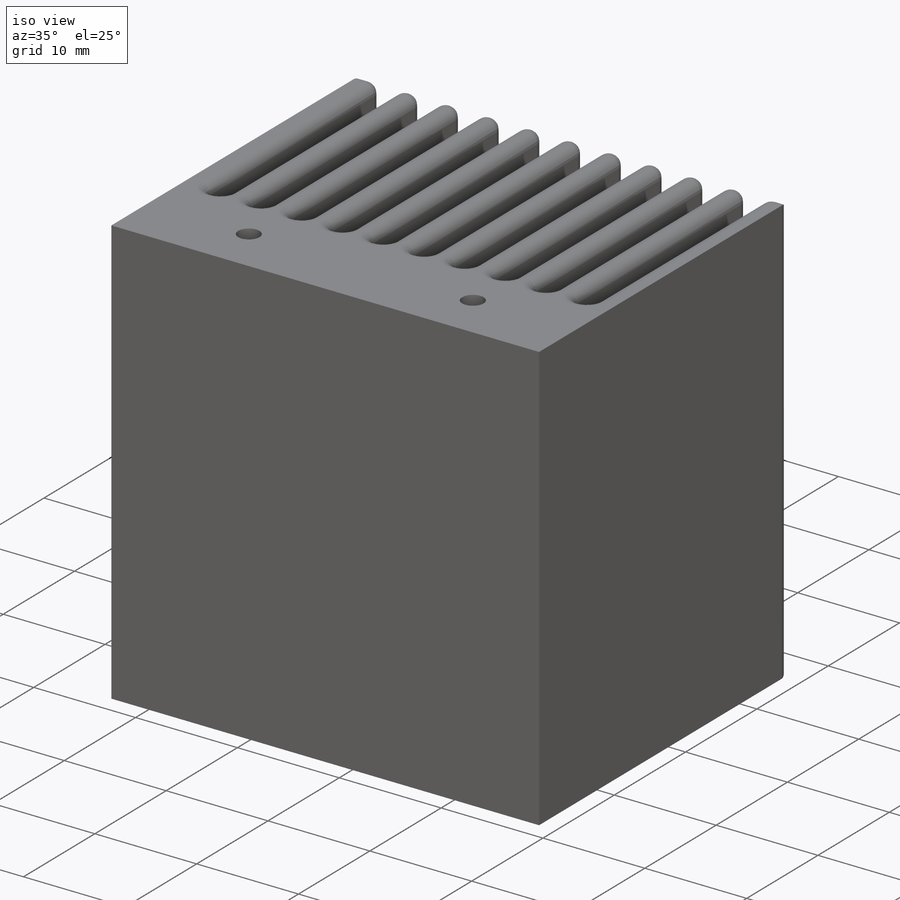
[diagram: iso view]
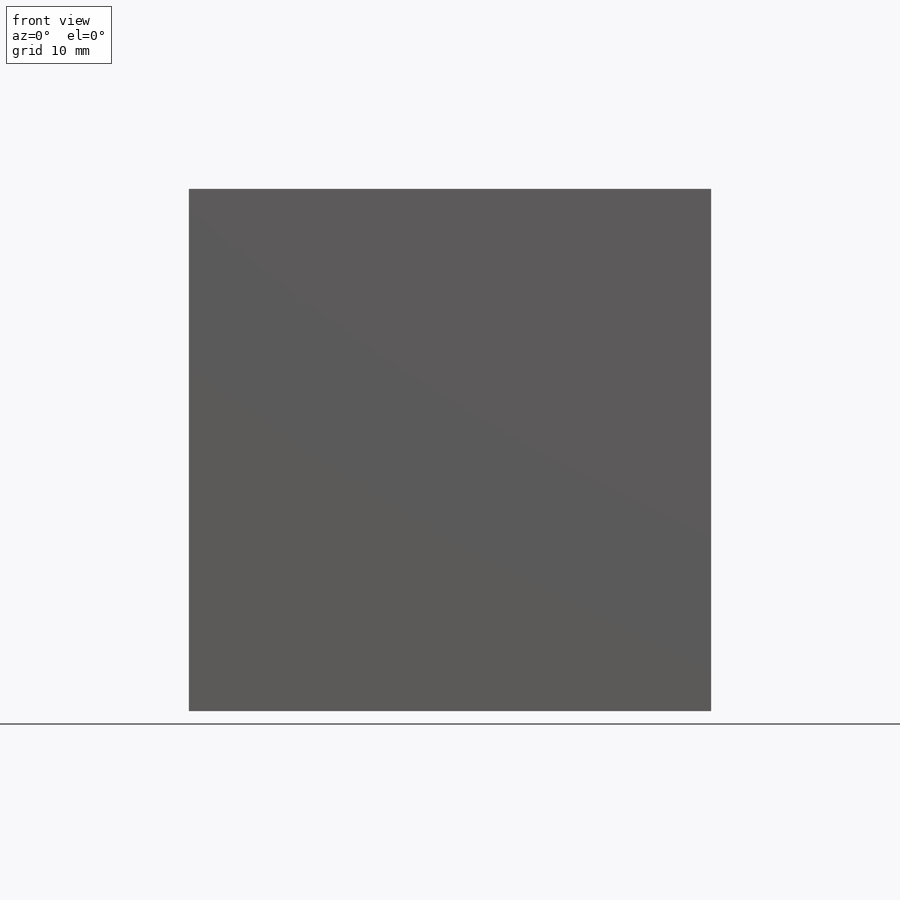
[diagram: front view]
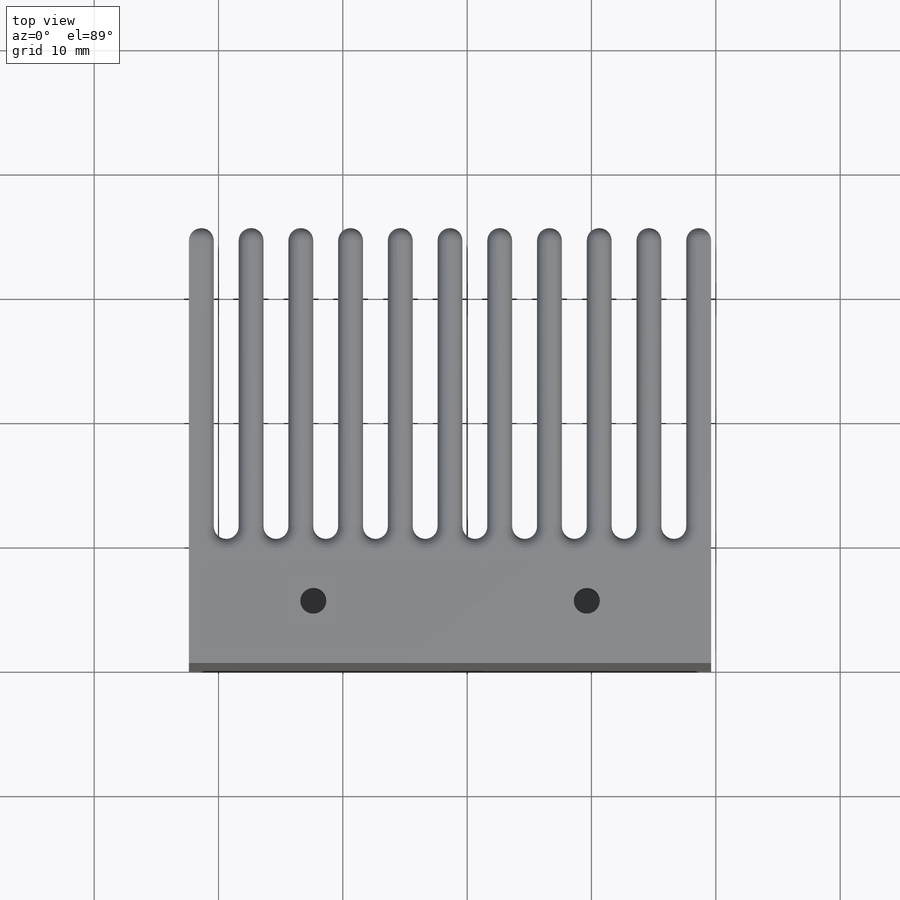
[diagram: top view]
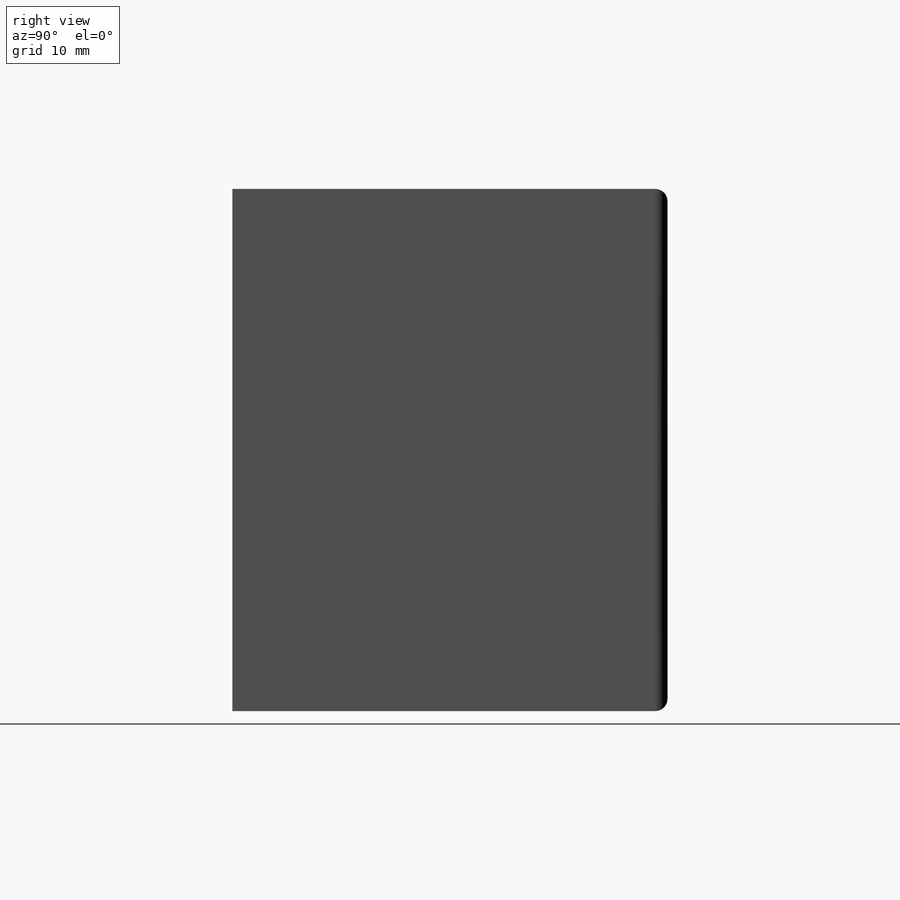
[diagram: right view]
SOLIDWORKS PART (.sldprt)
format: sldprt  version: not decoded by parser v0  size: 576,000 bytes
history: native  units: mm
features: plane x5, sketch x5, extrude x4, material x1, fillet x1 (+9 scaffold rows collapsed)
feature tree (25):
  scaffold x9  (default folders/planes/origin — collapsed)
  material  "1060 slitina"
  plane  "Přední rovina"
  plane  "Horní rovina"
  plane  "Pravá rovina"
  sketch  "Skica1"  dims[c1.D1=40.0mm c1.D2=40.0mm c2.D1=42.0mm c2.D2=42.0mm]
  extrude  "Přidat vysunutím1"  Depth=10mm
  sketch  "Skica3"  dims[c1.D3=~2.587083mm c1.D1=3.3mm c1.D6=3.1mm c1.D7=3.1mm c2.D1=5.0mm c2.D2=7.5mm c3.D1=5.0mm c3.D2=5.0mm c4.D1=11.55mm c4.D2=11.55mm c4.D3=5.0mm c4.D4=5.0mm c4.D5=18.9mm]
  extrude  "Odebrat vysunutím5"  Depth=5mm
  sketch  "Skica6"  dims[D1=10.0mm D2=10.0mm D3=5.0mm D4=5.0mm]
  extrude  "Odebrat vysunutím6"  Depth=5mm
  plane  "Rovina1"  Offset=0mm
  sketch  "Skica8"  dims[c1.D1=2.0mm c1.D2=2.75mm c2.D1=2.0mm c2.D2=42.0mm c2.D3=2.0mm c3.D3=21.0]
  extrude  "Přidat vysunutím2"  Depth=25mm
  fillet  "Zaoblit2"  Radius=1mm
  plane  "Rovina2"  Offset=0mm
  sketch  "Skica9"
decode coverage: 9 of 10 modeling features carry decoded parameters
note: ~ marks probable driven/reference dimensions
note: suppression state not decoded; provenance and decode notes live in map.json
